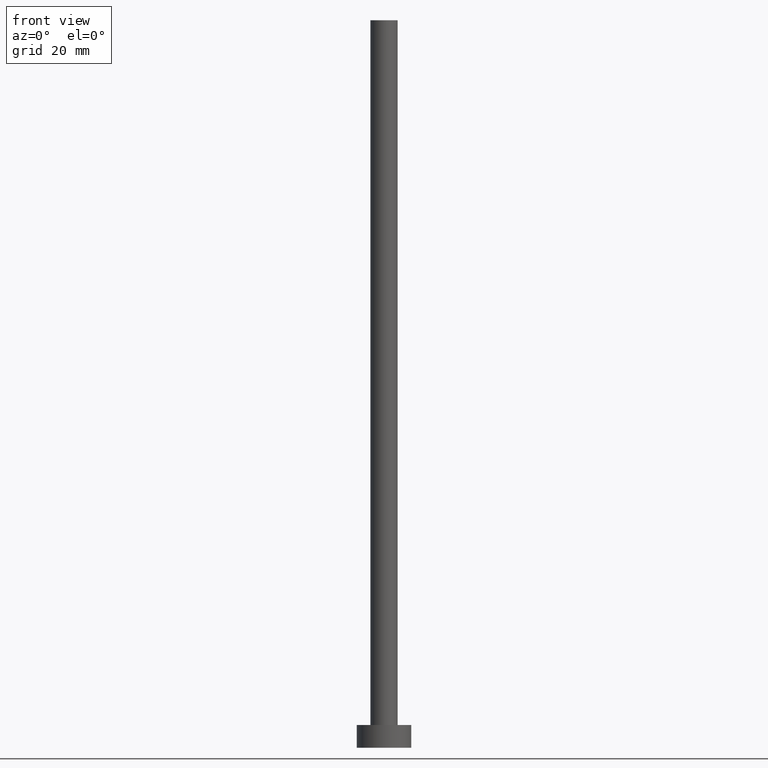
[diagram: clean part render]
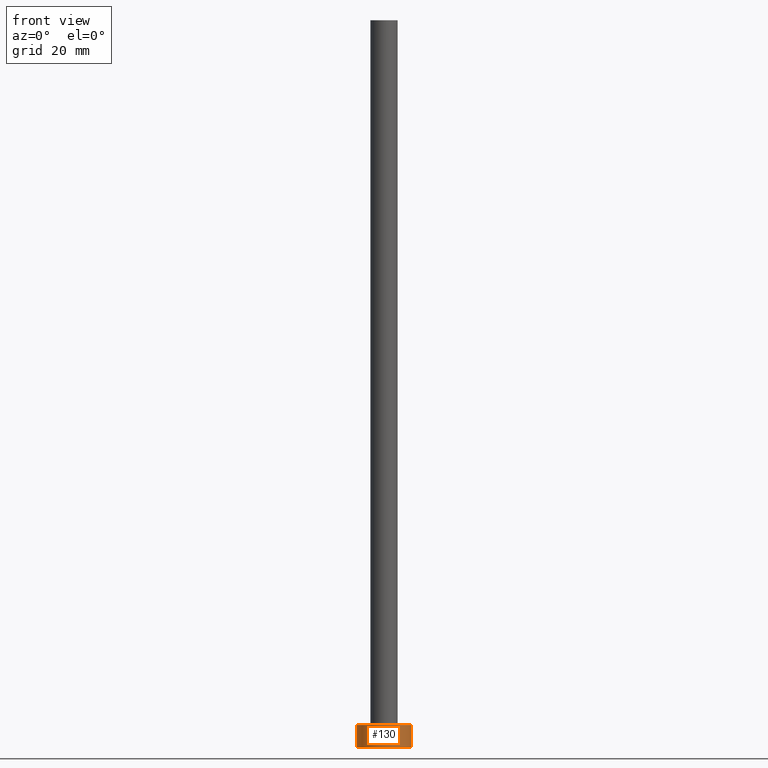
[diagram: same view with one face highlighted and labeled with its STEP entity id]
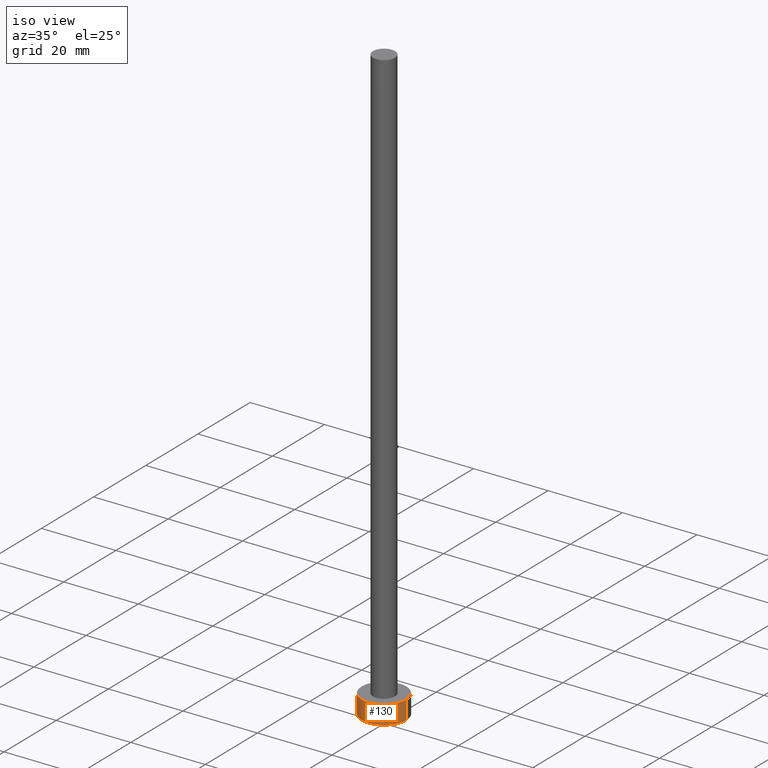
[diagram: same view with one face highlighted and labeled with its STEP entity id]
A machine part, front view. The second image highlights one B-rep face of the part: STEP entity #130.
A second angle (iso view) of the same face is appended — the face is thin or edge-on in the first view.
In plain terms, the highlighted cylindrical surface (edge-blend (fillet) strip) has radius 6 mm, axis along (-0, -0, -1).
Its self-contained STEP definition (entity closure, byte-faithful):
#1 = CARTESIAN_POINT ( 'NONE',  ( 6.000000000000000888, 7.347880794884120722E-16, 0.000000000000000000 ) ) ;
#6 = LINE ( 'NONE', #248, #228 ) ;
#12 = VERTEX_POINT ( 'NONE', #1 ) ;
#22 = CARTESIAN_POINT ( 'NONE',  ( 0.000000000000000000, 0.000000000000000000, 5.000000000000000000 ) ) ;
#38 = AXIS2_PLACEMENT_3D ( 'NONE', #22, #98, #183 ) ;
#40 = DIRECTION ( 'NONE',  ( -0.000000000000000000, -0.000000000000000000, -1.000000000000000000 ) ) ;
#53 = EDGE_CURVE ( 'NONE', #176, #12, #225, .T. ) ;
#54 = ORIENTED_EDGE ( 'NONE', *, *, #247, .T. ) ;
#55 = CIRCLE ( 'NONE', #122, 6.000000000000000888 ) ;
#57 = CARTESIAN_POINT ( 'NONE',  ( 0.000000000000000000, 0.000000000000000000, 5.000000000000000000 ) ) ;
#59 = DIRECTION ( 'NONE',  ( 1.000000000000000000, 0.000000000000000000, 0.000000000000000000 ) ) ;
#62 = DIRECTION ( 'NONE',  ( 1.000000000000000000, 0.000000000000000000, 0.000000000000000000 ) ) ;
#63 = CARTESIAN_POINT ( 'NONE',  ( 0.000000000000000000, 0.000000000000000000, 0.000000000000000000 ) ) ;
#67 = EDGE_CURVE ( 'NONE', #136, #12, #116, .T. ) ;
#78 = ORIENTED_EDGE ( 'NONE', *, *, #90, .F. ) ;
#80 = CARTESIAN_POINT ( 'NONE',  ( 6.000000000000000888, 7.347880794884120722E-16, 5.000000000000000000 ) ) ;
#90 = EDGE_CURVE ( 'NONE', #211, #136, #55, .T. ) ;
#95 = EDGE_LOOP ( 'NONE', ( #208, #78, #54, #194 ) ) ;
#98 = DIRECTION ( 'NONE',  ( -0.000000000000000000, -0.000000000000000000, -1.000000000000000000 ) ) ;
#112 = AXIS2_PLACEMENT_3D ( 'NONE', #63, #125, #62 ) ;
#116 = LINE ( 'NONE', #143, #212 ) ;
#122 = AXIS2_PLACEMENT_3D ( 'NONE', #57, #182, #59 ) ;
#125 = DIRECTION ( 'NONE',  ( 0.000000000000000000, 0.000000000000000000, 1.000000000000000000 ) ) ;
#130 = ADVANCED_FACE ( 'NONE', ( #202 ), #200, .T. ) ;
#136 = VERTEX_POINT ( 'NONE', #80 ) ;
#143 = CARTESIAN_POINT ( 'NONE',  ( 6.000000000000000888, 7.347880794884120722E-16, 5.000000000000000000 ) ) ;
#160 = CARTESIAN_POINT ( 'NONE',  ( -6.000000000000000888, 0.000000000000000000, 5.000000000000000000 ) ) ;
#176 = VERTEX_POINT ( 'NONE', #242 ) ;
#182 = DIRECTION ( 'NONE',  ( 0.000000000000000000, 0.000000000000000000, 1.000000000000000000 ) ) ;
#183 = DIRECTION ( 'NONE',  ( -1.000000000000000000, 0.000000000000000000, 0.000000000000000000 ) ) ;
#194 = ORIENTED_EDGE ( 'NONE', *, *, #53, .T. ) ;
#200 = CYLINDRICAL_SURFACE ( 'NONE', #38, 6.000000000000000888 ) ;
#202 = FACE_OUTER_BOUND ( 'NONE', #95, .T. ) ;
#208 = ORIENTED_EDGE ( 'NONE', *, *, #67, .F. ) ;
#211 = VERTEX_POINT ( 'NONE', #160 ) ;
#212 = VECTOR ( 'NONE', #40, 1000.000000000000000 ) ;
#225 = CIRCLE ( 'NONE', #112, 6.000000000000000888 ) ;
#228 = VECTOR ( 'NONE', #246, 1000.000000000000000 ) ;
#242 = CARTESIAN_POINT ( 'NONE',  ( -6.000000000000000888, 0.000000000000000000, 0.000000000000000000 ) ) ;
#246 = DIRECTION ( 'NONE',  ( -0.000000000000000000, -0.000000000000000000, -1.000000000000000000 ) ) ;
#247 = EDGE_CURVE ( 'NONE', #211, #176, #6, .T. ) ;
#248 = CARTESIAN_POINT ( 'NONE',  ( -6.000000000000000888, 0.000000000000000000, 5.000000000000000000 ) ) ;